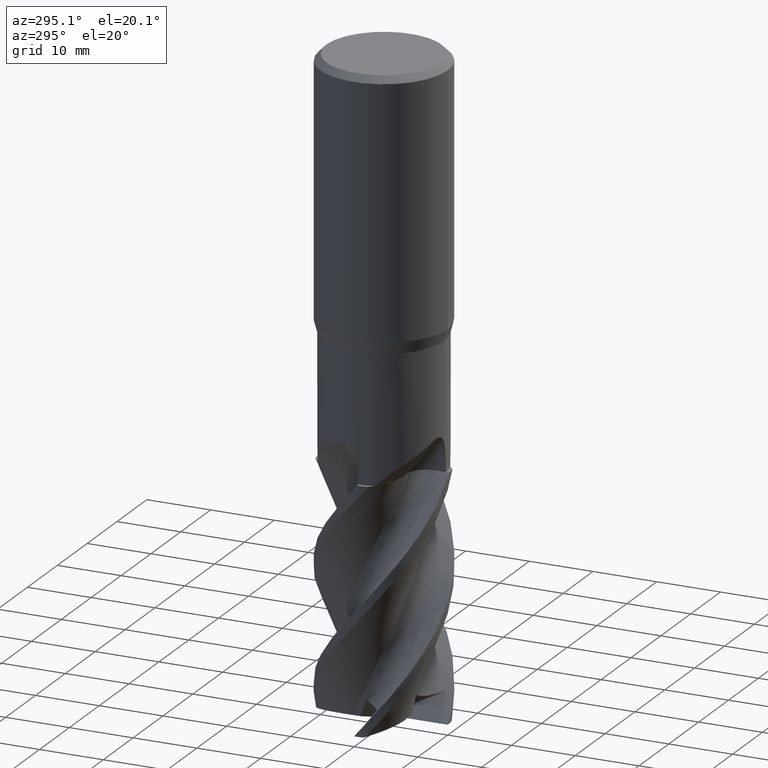
[diagram: clean part render]
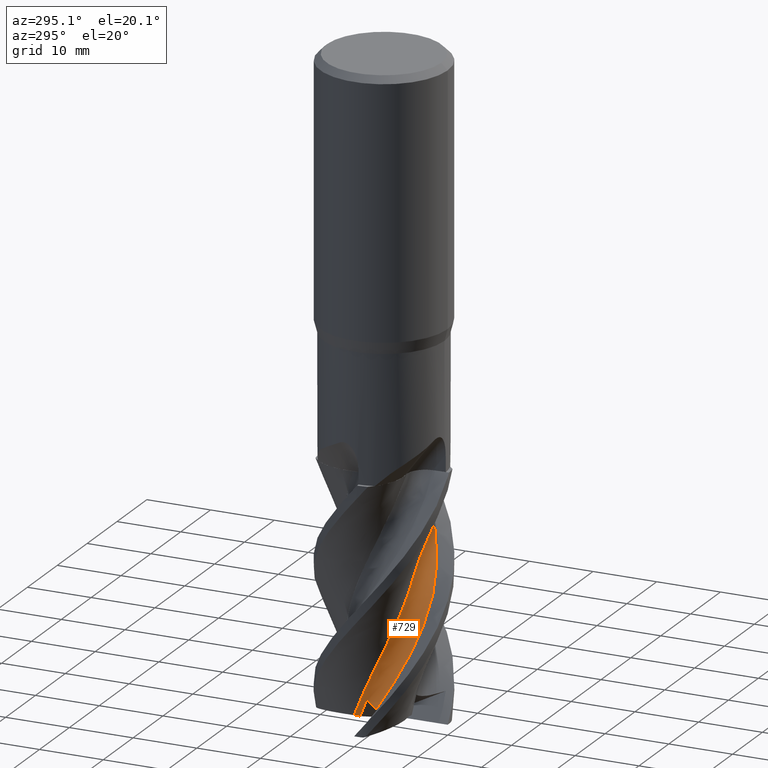
[diagram: same view with one face highlighted and labeled with its STEP entity id]
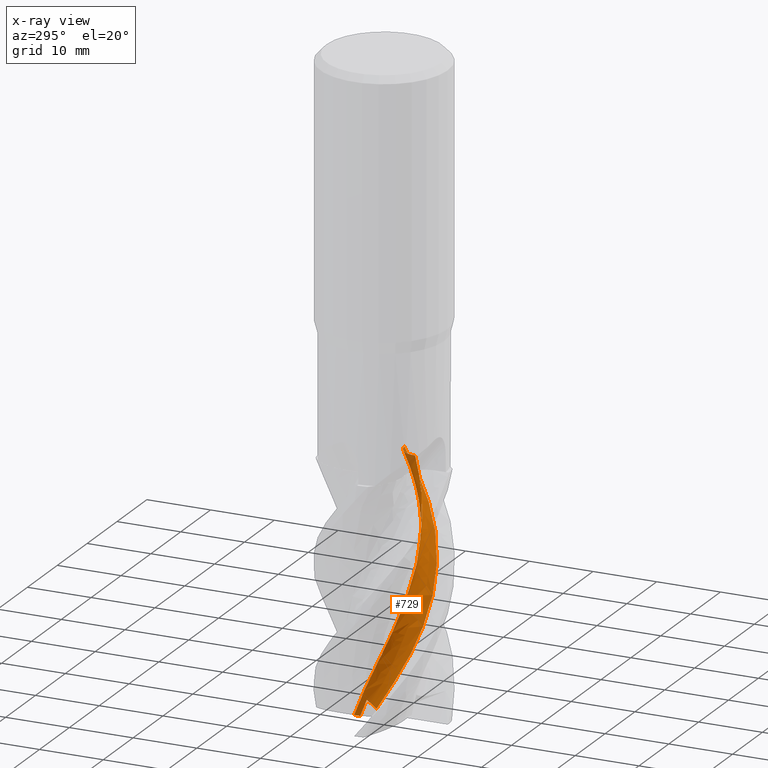
[diagram: x-ray of the same camera — body ghosted, the highlighted face saturated]
A machine part, auxiliary view. The second image highlights one B-rep face of the part: STEP entity #729.
The next image is the same camera in x-ray: the body ghosted, the highlighted face saturated — about 2% of this face is hidden behind the body in this view.
In plain terms, the highlighted face is a freeform B-spline surface patch.
Its self-contained STEP definition (entity closure, byte-faithful):
#511=EDGE_CURVE('',#559,#1005,#1466,.T.);
#559=VERTEX_POINT('',#1519);
#613=EDGE_CURVE('',#1147,#1117,#1577,.T.);
#657=VERTEX_POINT('',#1626);
#729=ADVANCED_FACE('',(#1701),#1702,.T.);
#783=EDGE_CURVE('',#657,#1117,#1761,.T.);
#963=EDGE_CURVE('',#1005,#1147,#1953,.T.);
#1005=VERTEX_POINT('',#1999);
#1065=EDGE_CURVE('',#657,#1111,#2067,.T.);
#1111=VERTEX_POINT('',#2117);
#1117=VERTEX_POINT('',#2123);
#1147=VERTEX_POINT('',#2158);
#1323=EDGE_CURVE('',#1111,#559,#2351,.T.);
#1466=B_SPLINE_CURVE_WITH_KNOTS('',3,(#2527,#2528,#2529,#2530,#2531,#2532),.UNSPECIFIED.,.F.,.F.,(4,2,4),(0.0,1.04268685341575,2.03928513413409),.UNSPECIFIED.);
#1519=CARTESIAN_POINT('',(-5.00926803873214,1.40514740391976,-98.8147217949249));
#1577=B_SPLINE_CURVE_WITH_KNOTS('',3,(#3366,#3367,#3368,#3369,#3370,#3371,#3372,#3373,#3374,#3375),.UNSPECIFIED.,.F.,.F.,(4,2,2,2,4),(0.0,1.12331201311393,2.24660096088112,3.36979158464827,4.49322327777783),.UNSPECIFIED.);
#1626=CARTESIAN_POINT('',(-7.20321874456389,-2.18351594832898,-96.4458820659791));
#1701=FACE_OUTER_BOUND('',#4061,.T.);
#1702=B_SPLINE_SURFACE_WITH_KNOTS('',3,3,((#4062,#4063,#4064,#4065,#4066,#4067,#4068,#4069,#4070,#4071,#4072,#4073,#4074,#4075,#4076,#4077,#4078,#4079,#4080,#4081,#4082,#4083,#4084,#4085,#4086,#4087,#4088,#4089,#4090,#4091,#4092,#4093,#4094,#4095,#4096,#4097,#4098,#4099,#4100,#4101,#4102,#4103,#4104,#4105,#4106,#4107,#4108,#4109,#4110,#4111,#4112,#4113,#4114),(#4115,#4116,#4117,#4118,#4119,#4120,#4121,#4122,#4123,#4124,#4125,#4126,#4127,#4128,#4129,#4130,#4131,#4132,#4133,#4134,#4135,#4136,#4137,#4138,#4139,#4140,#4141,#4142,#4143,#4144,#4145,#4146,#4147,#4148,#4149,#4150,#4151,#4152,#4153,#4154,#4155,#4156,#4157,#4158,#4159,#4160,#4161,#4162,#4163,#4164,#4165,#4166,#4167),(#4168,#4169,#4170,#4171,#4172,#4173,#4174,#4175,#4176,#4177,#4178,#4179,#4180,#4181,#4182,#4183,#4184,#4185,#4186,#4187,#4188,#4189,#4190,#4191,#4192,#4193,#4194,#4195,#4196,#4197,#4198,#4199,#4200,#4201,#4202,#4203,#4204,#4205,#4206,#4207,#4208,#4209,#4210,#4211,#4212,#4213,#4214,#4215,#4216,#4217,#4218,#4219,#4220),(#4221,#4222,#4223,#4224,#4225,#4226,#4227,#4228,#4229,#4230,#4231,#4232,#4233,#4234,#4235,#4236,#4237,#4238,#4239,#4240,#4241,#4242,#4243,#4244,#4245,#4246,#4247,#4248,#4249,#4250,#4251,#4252,#4253,#4254,#4255,#4256,#4257,#4258,#4259,#4260,#4261,#4262,#4263,#4264,#4265,#4266,#4267,#4268,#4269,#4270,#4271,#4272,#4273),(#4274,#4275,#4276,#4277,#4278,#4279,#4280,#4281,#4282,#4283,#4284,#4285,#4286,#4287,#4288,#4289,#4290,#4291,#4292,#4293,#4294,#4295,#4296,#4297,#4298,#4299,#4300,#4301,#4302,#4303,#4304,#4305,#4306,#4307,#4308,#4309,#4310,#4311,#4312,#4313,#4314,#4315,#4316,#4317,#4318,#4319,#4320,#4321,#4322,#4323,#4324,#4325,#4326),(#4327,#4328,#4329,#4330,#4331,#4332,#4333,#4334,#4335,#4336,#4337,#4338,#4339,#4340,#4341,#4342,#4343,#4344,#4345,#4346,#4347,#4348,#4349,#4350,#4351,#4352,#4353,#4354,#4355,#4356,#4357,#4358,#4359,#4360,#4361,#4362,#4363,#4364,#4365,#4366,#4367,#4368,#4369,#4370,#4371,#4372,#4373,#4374,#4375,#4376,#4377,#4378,#4379),(#4380,#4381,#4382,#4383,#4384,#4385,#4386,#4387,#4388,#4389,#4390,#4391,#4392,#4393,#4394,#4395,#4396,#4397,#4398,#4399,#4400,#4401,#4402,#4403,#4404,#4405,#4406,#4407,#4408,#4409,#4410,#4411,#4412,#4413,#4414,#4415,#4416,#4417,#4418,#4419,#4420,#4421,#4422,#4423,#4424,#4425,#4426,#4427,#4428,#4429,#4430,#4431,#4432)),.UNSPECIFIED.,.F.,.F.,.F.,(4,1,1,1,4),(4,1,2,1,2,1,2,1,2,1,2,1,2,1,2,1,2,1,2,1,2,1,2,1,2,1,2,1,2,1,2,1,2,1,4),(-4.63397436365283E-016,0.392699081681333,0.785398163362667,1.178097245044,1.57079632672533),(0.0,1.22301984073094,2.44603968146188,3.66905952219281,4.89207936292375,7.33811904438563,9.7841587258475,12.2301984073094,14.6762380887713,17.1222777702331,19.568317451695,22.0143571331569,24.4603968146188,26.9064364960806,29.3524761775425,31.7985158590044,34.2445555404663,36.6905952219281,39.13663490339,41.5826745848519,44.0287142663138,46.4747539477756,48.9207936292375,51.3668333106994,53.8128729921613,56.2589126736231,58.704952355085,61.1509920365469,63.5970317180088,66.0430713994706,68.4891110809325,70.9351507623944,73.3811904438563,75.8272301253181,78.27326980678),.UNSPECIFIED.);
#1761=B_SPLINE_CURVE_WITH_KNOTS('',3,(#5243,#5244,#5245,#5246,#5247,#5248,#5249,#5250,#5251,#5252,#5253,#5254,#5255,#5256,#5257,#5258,#5259,#5260,#5261,#5262,#5263,#5264,#5265,#5266,#5267,#5268,#5269,#5270,#5271,#5272,#5273,#5274,#5275,#5276,#5277,#5278,#5279,#5280,#5281,#5282,#5283,#5284,#5285,#5286,#5287,#5288,#5289,#5290,#5291,#5292,#5293,#5294,#5295),.UNSPECIFIED.,.F.,.F.,(4,1,2,1,2,1,2,1,2,1,2,1,2,1,2,1,2,1,2,1,2,1,2,1,2,1,2,1,2,1,2,1,2,1,4),(0.0,1.22301984073094,2.44603968146188,3.66905952219281,4.89207936292375,7.33811904438563,9.7841587258475,12.2301984073094,14.6762380887713,17.1222777702331,19.568317451695,22.0143571331569,24.4603968146188,26.9064364960806,29.3524761775425,31.7985158590044,34.2445555404663,36.6905952219281,39.13663490339,41.5826745848519,44.0287142663138,46.4747539477756,48.9207936292375,51.3668333106994,53.8128729921613,56.2589126736231,58.704952355085,61.1509920365469,63.5970317180088,66.0430713994706,68.4891110809325,70.9351507623944,73.3811904438563,75.8272301253181,78.27326980678),.UNSPECIFIED.);
#1953=B_SPLINE_CURVE_WITH_KNOTS('',3,(#6532,#6533,#6534,#6535,#6536,#6537,#6538,#6539,#6540,#6541,#6542,#6543,#6544,#6545,#6546,#6547,#6548,#6549,#6550,#6551,#6552,#6553,#6554,#6555,#6556,#6557,#6558,#6559,#6560,#6561,#6562,#6563,#6564,#6565,#6566,#6567,#6568,#6569,#6570,#6571,#6572,#6573,#6574,#6575,#6576,#6577,#6578,#6579,#6580,#6581),.UNSPECIFIED.,.F.,.F.,(4,2,2,2,2,2,2,2,2,2,2,2,2,2,2,2,2,2,2,2,2,2,2,2,4),(-42.6793750764278,-41.6484282628846,-41.3031767666782,-39.9343017732852,-37.2058171197827,-35.3592609180064,-34.1428005368885,-31.2942770569218,-30.9484209237267,-30.5525483034904,-26.5344471881157,-25.4755047854264,-23.7536246427578,-21.1447431770907,-20.2111288594085,-19.2419914901878,-16.6354994667726,-14.1723806855383,-11.5471699419231,-8.99212927884828,-6.42373230069979,-5.1359163561375,-4.1335898919326,-3.09989082133511,-0.0),.UNSPECIFIED.);
#1999=CARTESIAN_POINT('',(-4.91967659500781,2.38364188820486,-98.8438318196049));
#2067=B_SPLINE_CURVE_WITH_KNOTS('',3,(#8416,#8417,#8418,#8419,#8420,#8421,#8422,#8423,#8424,#8425,#8426,#8427),.UNSPECIFIED.,.F.,.F.,(4,2,2,2,2,4),(0.0,1.48304953667462,2.54994211312276,3.382607880985,4.09551695463538,4.84909789239624),.UNSPECIFIED.);
#2117=CARTESIAN_POINT('',(-5.1968307244328,0.257245450401672,-96.1044122415691));
#2123=CARTESIAN_POINT('',(7.51982989433022,0.325351321170703,-62.0));
#2158=CARTESIAN_POINT('',(4.79210471077056,-2.63124668642199,-62.0));
#2351=B_SPLINE_CURVE_WITH_KNOTS('',3,(#10015,#10016,#10017,#10018,#10019,#10020,#10021,#10022,#10023,#10024),.UNSPECIFIED.,.F.,.F.,(4,2,2,2,4),(0.0,2.78678133127191,4.95487934234066,8.66180025825916,11.9106485364586),.UNSPECIFIED.);
#2527=CARTESIAN_POINT('',(-5.40610677336301,0.476930002835768,-98.6857810738152));
#2528=CARTESIAN_POINT('',(-5.22903971020181,0.770420717146186,-98.7433136501904));
#2529=CARTESIAN_POINT('',(-5.08974327923389,1.09004090396465,-98.7885738042285));
#2530=CARTESIAN_POINT('',(-4.92227008976455,1.74524111986049,-98.842989142078));
#2531=CARTESIAN_POINT('',(-4.89004525345537,2.07768649677621,-98.8534596261011));
#2532=CARTESIAN_POINT('',(-4.92180436179873,2.40679017917124,-98.8431404662656));
#3366=CARTESIAN_POINT('',(4.79291087853714,-2.65514743398472,-62.0));
#3367=CARTESIAN_POINT('',(4.77873234851798,-2.28097863630934,-62.0));
#3368=CARTESIAN_POINT('',(4.83777279409011,-1.90761566930437,-62.0));
#3369=CARTESIAN_POINT('',(5.09564284664005,-1.20454766134575,-62.0));
#3370=CARTESIAN_POINT('',(5.29200536840838,-0.88156030856784,-62.0));
#3371=CARTESIAN_POINT('',(5.7974671370231,-0.329067740189729,-62.0));
#3372=CARTESIAN_POINT('',(6.10172467397946,-0.104835932317854,-62.0));
#3373=CARTESIAN_POINT('',(6.77914391231097,0.214401178119614,-62.0));
#3374=CARTESIAN_POINT('',(7.14583785785515,0.306323648339433,-62.0));
#3375=CARTESIAN_POINT('',(7.51982989433022,0.325351321170703,-62.0));
#4061=EDGE_LOOP('',(#10976,#10977,#10978,#10979,#10980,#10981));
#4062=CARTESIAN_POINT('',(3.08721113193414,4.51190119880654,-120.0));
#4063=CARTESIAN_POINT('',(3.11610382286491,4.51524322899714,-119.593768411031));
#4064=CARTESIAN_POINT('',(3.06013871840662,4.58917170861519,-118.78060100899));
#4065=CARTESIAN_POINT('',(2.75699189989394,4.78076581627041,-117.967197499112));
#4066=CARTESIAN_POINT('',(2.31605559725722,4.9961917282453,-117.155338148176));
#4067=CARTESIAN_POINT('',(1.89714969170703,5.16883258850242,-116.343747876049));
#4068=CARTESIAN_POINT('',(1.52872133401086,5.27994279550028,-115.531622990232));
#4069=CARTESIAN_POINT('',(1.01082684962153,5.41503697790628,-114.312424192179));
#4070=CARTESIAN_POINT('',(0.302521388352476,5.52823535868766,-112.686807230555));
#4071=CARTESIAN_POINT('',(-0.446022687883692,5.49588480233488,-111.061476902276));
#4072=CARTESIAN_POINT('',(-1.20967755949133,5.37718956688334,-109.436843998997));
#4073=CARTESIAN_POINT('',(-1.93792388798994,5.18525835775153,-107.812284087169));
#4074=CARTESIAN_POINT('',(-2.60798490320984,4.85589478790535,-106.187215946125));
#4075=CARTESIAN_POINT('',(-3.25084516038128,4.45006683834334,-104.562078291245));
#4076=CARTESIAN_POINT('',(-3.83837816597191,3.98905611551164,-102.937092088323));
#4077=CARTESIAN_POINT('',(-4.32325333384168,3.41961334817729,-101.311965084728));
#4078=CARTESIAN_POINT('',(-4.75260311258176,2.7900459813916,-99.6870055977501));
#4079=CARTESIAN_POINT('',(-5.10836857642133,2.13291553327871,-98.0621508571898));
#4080=CARTESIAN_POINT('',(-5.32667714479379,1.41806321474878,-96.4370327670634));
#4081=CARTESIAN_POINT('',(-5.47022389499008,0.669664459637299,-94.812021589412));
#4082=CARTESIAN_POINT('',(-5.53528513095286,-0.0749797990304065,-93.1871324521088));
#4083=CARTESIAN_POINT('',(-5.45117572326192,-0.817812643737092,-91.5620140537044));
#4084=CARTESIAN_POINT('',(-5.28522627424691,-1.56142828315366,-89.9370154945107));
#4085=CARTESIAN_POINT('',(-5.04879543739392,-2.27038069927681,-88.3121338328947));
#4086=CARTESIAN_POINT('',(-4.67620377986173,-2.91845536995069,-86.6870149801742));
#4087=CARTESIAN_POINT('',(-4.22813837476447,-3.53476678594239,-85.0620139811539));
#4088=CARTESIAN_POINT('',(-3.72918981299303,-4.09122429010573,-83.4371311546494));
#4089=CARTESIAN_POINT('',(-3.12955821834894,-4.53763024613877,-81.8120125834688));
#4090=CARTESIAN_POINT('',(-2.47334225150787,-4.92486463395386,-80.1870119231299));
#4091=CARTESIAN_POINT('',(-1.79424518160549,-5.23695086383405,-78.5621291786726));
#4092=CARTESIAN_POINT('',(-1.06653151763088,-5.40802566058477,-76.9370105313418));
#4093=CARTESIAN_POINT('',(-0.310430194038539,-5.50230381356891,-75.3120098946399));
#4094=CARTESIAN_POINT('',(0.436774962016067,-5.51853203030275,-73.6871272016574));
#4095=CARTESIAN_POINT('',(1.17249884247416,-5.38604359729932,-72.0620086700829));
#4096=CARTESIAN_POINT('',(1.9037220352411,-5.17180243448855,-70.4370081889914));
#4097=CARTESIAN_POINT('',(2.59573028525208,-4.88949172907576,-68.8121254918461));
#4098=CARTESIAN_POINT('',(3.21804584125014,-4.47530946613914,-67.187006322503));
#4099=CARTESIAN_POINT('',(3.80371712525012,-3.98791128071872,-65.5620047974434));
#4100=CARTESIAN_POINT('',(4.32635387599371,-3.45363913235864,-63.9371221468102));
#4101=CARTESIAN_POINT('',(4.73259594212301,-2.82607794431654,-62.3120059091278));
#4102=CARTESIAN_POINT('',(5.07608650998662,-2.14593062269123,-60.6870087802051));
#4103=CARTESIAN_POINT('',(5.34308278835049,-1.44790096699008,-59.0621251400353));
#4104=CARTESIAN_POINT('',(5.46620504481946,-0.710519042036873,-57.4369970062386));
#4105=CARTESIAN_POINT('',(5.5108114848989,0.0502646993474017,-55.8119838471334));
#4106=CARTESIAN_POINT('',(5.47807490782117,0.797020048069303,-54.1871059758979));
#4107=CARTESIAN_POINT('',(5.29786995778533,1.52205615741117,-52.5620173136074));
#4108=CARTESIAN_POINT('',(5.03673322896618,2.23690988545075,-50.9370507379584));
#4109=CARTESIAN_POINT('',(4.71011061627908,2.90897421936311,-49.3121453408592));
#4110=CARTESIAN_POINT('',(4.25438587443237,3.50491982800874,-47.6869503066768));
#4111=CARTESIAN_POINT('',(3.72611066974083,4.06004007450653,-46.0618862290408));
#4112=CARTESIAN_POINT('',(3.15811152350845,4.54539028834498,-44.437087585809));
#4113=CARTESIAN_POINT('',(2.51614121609505,4.90452672686972,-42.8120826714825));
#4114=CARTESIAN_POINT('',(2.17419623596112,5.05180807732969,-41.9995734139953));
#4115=CARTESIAN_POINT('',(2.71127897221626,4.52934432591632,-120.0));
#4116=CARTESIAN_POINT('',(2.74015505370853,4.53232836280882,-119.593767296312));
#4117=CARTESIAN_POINT('',(2.68366624048972,4.59771450453499,-118.780678726627));
#4118=CARTESIAN_POINT('',(2.38064767069302,4.76466743936391,-117.967380480443));
#4119=CARTESIAN_POINT('',(1.94250617083635,4.94766482533131,-117.155445066758));
#4120=CARTESIAN_POINT('',(1.52828401234983,5.09033922774199,-116.343747537785));
#4121=CARTESIAN_POINT('',(1.1667846246332,5.17610511105641,-115.531578732684));
#4122=CARTESIAN_POINT('',(0.660213958936957,5.27609667054204,-114.312433028779));
#4123=CARTESIAN_POINT('',(-0.0284524944787125,5.34395359608019,-112.686888671081));
#4124=CARTESIAN_POINT('',(-0.747769790907061,5.26945195452043,-111.061596945888));
#4125=CARTESIAN_POINT('',(-1.47693997290957,5.11093068847094,-109.436920626933));
#4126=CARTESIAN_POINT('',(-2.16749723577127,4.88381846758501,-107.812308796316));
#4127=CARTESIAN_POINT('',(-2.79395218233255,4.52768749684163,-106.187248647254));
#4128=CARTESIAN_POINT('',(-3.38996374188623,4.09942496932643,-104.56212714528));
#4129=CARTESIAN_POINT('',(-3.92928858479677,3.62122771992231,-102.937139256586));
#4130=CARTESIAN_POINT('',(-4.36344684794768,3.04452534334458,-101.312027041979));
#4131=CARTESIAN_POINT('',(-4.74078735217579,2.41299590417127,-99.687062777381));
#4132=CARTESIAN_POINT('',(-5.04546004706388,1.75927980513952,-98.0621907776626));
#4133=CARTESIAN_POINT('',(-5.21437328892092,1.05793210690873,-96.4370865457849));
#4134=CARTESIAN_POINT('',(-5.30941955400915,0.328419130351794,-94.8120765814974));
#4135=CARTESIAN_POINT('',(-5.32894887175681,-0.392765328828374,-93.1871743270863));
#4136=CARTESIAN_POINT('',(-5.20488670233559,-1.10355393115661,-91.562069756259));
#4137=CARTESIAN_POINT('',(-5.00195674472646,-1.81055589075862,-89.9370709695596));
#4138=CARTESIAN_POINT('',(-4.73308723157939,-2.4798804641705,-88.31217529739));
#4139=CARTESIAN_POINT('',(-4.33658434704948,-3.0826659126099,-86.6870702706053));
#4140=CARTESIAN_POINT('',(-3.86915056258192,-3.65067213100175,-85.0620694232556));
#4141=CARTESIAN_POINT('',(-3.35620068101032,-4.1578657280283,-83.43717262725));
#4142=CARTESIAN_POINT('',(-2.75264474890478,-4.55320795414356,-81.8120679549066));
#4143=CARTESIAN_POINT('',(-2.09787179678228,-4.88842011111799,-80.1870672945677));
#4144=CARTESIAN_POINT('',(-1.42552304953442,-5.14973893512046,-78.5621706549631));
#4145=CARTESIAN_POINT('',(-0.714519157868813,-5.27240213750829,-76.9370658859262));
#4146=CARTESIAN_POINT('',(0.0195664119033295,-5.31952387557967,-75.3120652492243));
#4147=CARTESIAN_POINT('',(0.740387232163096,-5.29185704569674,-73.6871686588437));
#4148=CARTESIAN_POINT('',(1.44152412750207,-5.12159728235738,-72.0620639775671));
#4149=CARTESIAN_POINT('',(2.13379125750352,-4.87284688030507,-70.4370634964756));
#4150=CARTESIAN_POINT('',(2.78413291764192,-4.56075722651411,-68.8121668911592));
#4151=CARTESIAN_POINT('',(3.35969229723183,-4.1256772185871,-67.1870616349403));
#4152=CARTESIAN_POINT('',(3.89589637195146,-3.62211181659908,-65.5620602615512));
#4153=CARTESIAN_POINT('',(4.36845898641736,-3.07709005353531,-63.9371636709967));
#4154=CARTESIAN_POINT('',(4.72348879606364,-2.4489526352061,-62.3120610576898));
#4155=CARTESIAN_POINT('',(5.01516216711449,-1.77364777594597,-60.6870634737557));
#4156=CARTESIAN_POINT('',(5.23194243585864,-1.08567219030151,-59.0621660705605));
#4157=CARTESIAN_POINT('',(5.30784750065215,-0.368131073103945,-57.4370528275824));
#4158=CARTESIAN_POINT('',(5.30683194237082,0.367595479836302,-55.8120413368525));
#4159=CARTESIAN_POINT('',(5.23201741989392,1.08514697794994,-54.187148984785));
#4160=CARTESIAN_POINT('',(5.01640447576203,1.77321796469544,-52.5620706908776));
#4161=CARTESIAN_POINT('',(4.72340849788002,2.44698727582524,-50.9370998684551));
#4162=CARTESIAN_POINT('',(4.36978467762515,3.07554295969913,-49.3121827581651));
#4163=CARTESIAN_POINT('',(3.8962034310134,3.62331956293507,-47.6870109023809));
#4164=CARTESIAN_POINT('',(3.35499548802484,4.1277638549251,-46.0619544082691));
#4165=CARTESIAN_POINT('',(2.77963500722246,4.56244713146086,-44.4371333955843));
#4166=CARTESIAN_POINT('',(2.14042067898384,4.87115363224796,-42.8121307750391));
#4167=CARTESIAN_POINT('',(1.80244487066501,4.99324041328533,-41.9996236409386));
#4168=CARTESIAN_POINT('',(1.96650945388016,4.71371697069067,-120.0));
#4169=CARTESIAN_POINT('',(1.99520995775684,4.71599177181313,-119.593765092206));
#4170=CARTESIAN_POINT('',(1.93427700517085,4.76450510479467,-118.780832369925));
#4171=CARTESIAN_POINT('',(1.62171600567319,4.88213507705846,-117.967742225636));
#4172=CARTESIAN_POINT('',(1.17626738884543,4.99917768779753,-117.155656438101));
#4173=CARTESIAN_POINT('',(0.759494224203957,5.08006922814382,-116.343746865174));
#4174=CARTESIAN_POINT('',(0.401771410103514,5.11240177176297,-115.531491246598));
#4175=CARTESIAN_POINT('',(-0.0961153625941524,5.13769980292694,-114.31245048085));
#4176=CARTESIAN_POINT('',(-0.763542598808307,5.10708324389095,-112.687049679157));
#4177=CARTESIAN_POINT('',(-1.44118054749512,4.9366748703023,-111.06183427399));
#4178=CARTESIAN_POINT('',(-2.1172331108743,4.68480501157966,-109.437072107903));
#4179=CARTESIAN_POINT('',(-2.74641827389567,4.37235816017741,-107.812357652381));
#4180=CARTESIAN_POINT('',(-3.29632381497228,3.94536315017934,-106.187313289137));
#4181=CARTESIAN_POINT('',(-3.8075790660861,3.45361104869715,-104.562223733573));
#4182=CARTESIAN_POINT('',(-4.25734230371342,2.9218774226255,-102.937232425479));
#4183=CARTESIAN_POINT('',(-4.59297502829854,2.31049071593158,-101.312149682115));
#4184=CARTESIAN_POINT('',(-4.86709907029204,1.65435590477372,-99.6871756644836));
#4185=CARTESIAN_POINT('',(-5.06825002702179,0.987149426049347,-98.06226979345));
#4186=CARTESIAN_POINT('',(-5.13302316659772,0.293162640070798,-96.4371928270697));
#4187=CARTESIAN_POINT('',(-5.12357870699383,-0.417873469702662,-94.8121853342438));
#4188=CARTESIAN_POINT('',(-5.04273433580806,-1.11025454395989,-93.1872570711436));
#4189=CARTESIAN_POINT('',(-4.8260406964872,-1.77285578137096,-91.5621799218547));
#4190=CARTESIAN_POINT('',(-4.53460545442057,-2.42135158292166,-89.937180596109));
#4191=CARTESIAN_POINT('',(-4.18511378371833,-3.02433673107121,-88.3122571861906));
#4192=CARTESIAN_POINT('',(-3.72278872730281,-3.54607139969002,-86.6871797900377));
#4193=CARTESIAN_POINT('',(-3.19741724172714,-4.02518962683365,-85.062178816103));
#4194=CARTESIAN_POINT('',(-2.63688025275049,-4.43944395408805,-83.4372547166399));
#4195=CARTESIAN_POINT('',(-2.00517120845339,-4.73424075790166,-81.8121774339198));
#4196=CARTESIAN_POINT('',(-1.33259646175622,-4.96485657182946,-80.1871767482638));
#4197=CARTESIAN_POINT('',(-0.653553261214558,-5.12197834921009,-78.5622526495342));
#4198=CARTESIAN_POINT('',(0.0432895485413143,-5.14119405235924,-76.9371753353269));
#4199=CARTESIAN_POINT('',(0.752105168921776,-5.08526784390849,-75.3121746658924));
#4200=CARTESIAN_POINT('',(1.43762381377432,-4.95933747529776,-73.6872505830202));
#4201=CARTESIAN_POINT('',(2.08462147588276,-4.6997970703828,-72.0621734027514));
#4202=CARTESIAN_POINT('',(2.7127159282532,-4.36655131744296,-70.4371727511607));
#4203=CARTESIAN_POINT('',(3.2915838564978,-3.97834717065632,-68.8122487418995));
#4204=CARTESIAN_POINT('',(3.78196084241997,-3.48288733145813,-67.1871710568239));
#4205=CARTESIAN_POINT('',(4.22568037918327,-2.92732309266253,-65.5621698389295));
#4206=CARTESIAN_POINT('',(4.60239055511847,-2.3408941055668,-63.9372458112582));
#4207=CARTESIAN_POINT('',(4.855246527561,-1.69123924828501,-62.3121700571528));
#4208=CARTESIAN_POINT('',(5.04138171137786,-1.00501167355077,-60.6871716262244));
#4209=CARTESIAN_POINT('',(5.15375298521497,-0.317170949548762,-59.0622468310175));
#4210=CARTESIAN_POINT('',(5.12735357444128,0.379473358922768,-57.4371634710358));
#4211=CARTESIAN_POINT('',(5.02514904489005,1.08323817792723,-55.812154703318));
#4212=CARTESIAN_POINT('',(4.85458303673338,1.75912707867951,-54.1872341777349));
#4213=CARTESIAN_POINT('',(4.55346944949782,2.38736375315557,-52.5621761691424));
#4214=CARTESIAN_POINT('',(4.18043068328222,2.99165076669003,-50.9371970425849));
#4215=CARTESIAN_POINT('',(3.75551411361825,3.54394478249706,-49.3122570516887));
#4216=CARTESIAN_POINT('',(3.22707243741104,4.0025045371795,-47.6871300079911));
#4217=CARTESIAN_POINT('',(2.63985256163473,4.41076109121629,-46.0620898836906));
#4218=CARTESIAN_POINT('',(2.02962425440365,4.74705916077375,-44.4372235998133));
#4219=CARTESIAN_POINT('',(1.37586664208524,4.95383110475447,-42.8122259028435));
#4220=CARTESIAN_POINT('',(1.03580861647093,5.02396095165926,-41.9997229369162));
#4221=CARTESIAN_POINT('',(1.04014691255925,5.39678006242423,-120.0));
#4222=CARTESIAN_POINT('',(1.06819694764866,5.39817270285624,-119.593762365099));
#4223=CARTESIAN_POINT('',(0.99141886430707,5.42585257725951,-118.781022492732));
#4224=CARTESIAN_POINT('',(0.63731885612615,5.48060205812712,-117.968189852331));
#4225=CARTESIAN_POINT('',(0.14388171877195,5.51043028236374,-117.155917996656));
#4226=CARTESIAN_POINT('',(-0.311893371768254,5.50715923600594,-116.34374603401));
#4227=CARTESIAN_POINT('',(-0.695055516107873,5.46326873854387,-115.53138298373));
#4228=CARTESIAN_POINT('',(-1.22378476417905,5.38006147451193,-114.312472088229));
#4229=CARTESIAN_POINT('',(-1.9183045388431,5.20077477855372,-112.687248918279));
#4230=CARTESIAN_POINT('',(-2.59323288315419,4.87351992542267,-111.062127927064));
#4231=CARTESIAN_POINT('',(-3.24925465136418,4.46178295209929,-109.437259574533));
#4232=CARTESIAN_POINT('',(-3.842368423041,3.99583721624587,-107.812418086386));
#4233=CARTESIAN_POINT('',(-4.32686099838518,3.42668618442441,-106.187393299862));
#4234=CARTESIAN_POINT('',(-4.75709575792637,2.79828733630373,-104.562343232121));
#4235=CARTESIAN_POINT('',(-5.11346504681285,2.14094302024582,-102.937347774356));
#4236=CARTESIAN_POINT('',(-5.33245833978634,1.42492755592834,-101.312301341112));
#4237=CARTESIAN_POINT('',(-5.47765591367728,0.675439921343913,-99.687315451326));
#4238=CARTESIAN_POINT('',(-5.54307666143792,-0.0698899549640896,-98.0623675175485));
#4239=CARTESIAN_POINT('',(-5.45929290525033,-0.813456582260692,-96.4373243464063));
#4240=CARTESIAN_POINT('',(-5.2944245889261,-1.55886786407015,-94.8123199020892));
#4241=CARTESIAN_POINT('',(-5.05793426298182,-2.26894879744848,-93.1873594747322));
#4242=CARTESIAN_POINT('',(-4.6851975585094,-2.91794061901116,-91.562316218687));
#4243=CARTESIAN_POINT('',(-4.23751437773188,-3.53615712551153,-89.9373162742366));
#4244=CARTESIAN_POINT('',(-3.73820355396586,-4.09348133930051,-88.3123585835957));
#4245=CARTESIAN_POINT('',(-3.13812613025241,-4.54067015558111,-86.6873151539657));
#4246=CARTESIAN_POINT('',(-2.48143065911342,-4.92985457539898,-85.0623143383641));
#4247=CARTESIAN_POINT('',(-1.80158931064072,-5.24261854880117,-83.4373562195207));
#4248=CARTESIAN_POINT('',(-1.07314384528652,-5.4142273119319,-81.8123129000058));
#4249=CARTESIAN_POINT('',(-0.315853458382787,-5.51009855407657,-80.1873121936675));
#4250=CARTESIAN_POINT('',(0.432282071048325,-5.52665307045854,-78.5623541308695));
#4251=CARTESIAN_POINT('',(1.16888259642954,-5.39436808179431,-76.9373107253257));
#4252=CARTESIAN_POINT('',(1.90183033093148,-5.181118099254,-75.312310104903));
#4253=CARTESIAN_POINT('',(2.59483065879029,-4.8987356481145,-73.6873520065913));
#4254=CARTESIAN_POINT('',(3.21804644036778,-4.48437951457015,-72.0623086647308));
#4255=CARTESIAN_POINT('',(3.80570628352276,-3.99719051204862,-70.4373080877586));
#4256=CARTESIAN_POINT('',(4.32920983528857,-3.46246715675284,-68.8123499498447));
#4257=CARTESIAN_POINT('',(4.7361906490739,-2.83442593307603,-67.1873064662065));
#4258=CARTESIAN_POINT('',(5.08158260207858,-2.15370399291291,-65.5623054233884));
#4259=CARTESIAN_POINT('',(5.3492174040874,-1.45486323444164,-63.9373474384235));
#4260=CARTESIAN_POINT('',(5.47281924301116,-0.716733823151005,-62.3123049733911));
#4261=CARTESIAN_POINT('',(5.51895560277328,0.0452161722197412,-60.6873054179087));
#4262=CARTESIAN_POINT('',(5.48654544502932,0.792805882073539,-59.0623468778797));
#4263=CARTESIAN_POINT('',(5.30636299959612,1.51921643631206,-57.4373001969335));
#4264=CARTESIAN_POINT('',(5.04556951052478,2.23677193136874,-55.8122951715114));
#4265=CARTESIAN_POINT('',(4.71838188343414,2.90988527916454,-54.1873394708488));
#4266=CARTESIAN_POINT('',(4.26442214568734,3.50427719839856,-52.5623067560532));
#4267=CARTESIAN_POINT('',(3.74056303095947,4.05821480126146,-50.9373172215612));
#4268=CARTESIAN_POINT('',(3.173061421742,4.5457407798209,-49.3123488226141));
#4269=CARTESIAN_POINT('',(2.51737186894209,4.91214443916154,-47.6872777802677));
#4270=CARTESIAN_POINT('',(1.81116595850844,5.2135042632087,-46.0622571348389));
#4271=CARTESIAN_POINT('',(1.09613511335011,5.43346276000876,-44.4373354443342));
#4272=CARTESIAN_POINT('',(0.363705982706812,5.50730865574206,-42.8123435563235));
#4273=CARTESIAN_POINT('',(-0.00906373199139415,5.50662491921201,-41.9998458076302));
#4274=CARTESIAN_POINT('',(0.44567765274784,6.38235254042635,-120.0));
#4275=CARTESIAN_POINT('',(0.472789138079434,6.38317906776506,-119.593760632028));
#4276=CARTESIAN_POINT('',(0.373399430638992,6.39767459476224,-118.781143312026));
#4277=CARTESIAN_POINT('',(-0.0431409786339913,6.41022515367599,-117.968474310902));
#4278=CARTESIAN_POINT('',(-0.614289059921368,6.37784057435642,-117.156084211827));
#4279=CARTESIAN_POINT('',(-1.13830461312422,6.31173729473607,-116.343745504554));
#4280=CARTESIAN_POINT('',(-1.57413858359665,6.20715985944066,-115.531314187588));
#4281=CARTESIAN_POINT('',(-2.17288518406021,6.03550789011839,-114.312485813605));
#4282=CARTESIAN_POINT('',(-2.94932780986428,5.72923353816014,-112.687375530811));
#4283=CARTESIAN_POINT('',(-3.68177391999129,5.25603237626468,-111.062314543992));
#4284=CARTESIAN_POINT('',(-4.38046639679866,4.68893002354779,-109.43737870003));
#4285=CARTESIAN_POINT('',(-4.99899414289224,4.0673641106774,-107.812456491229));
#4286=CARTESIAN_POINT('',(-5.47745158776997,3.34184424263767,-106.187444150767));
#4287=CARTESIAN_POINT('',(-5.88512328388211,2.55619394902447,-104.562419165565));
#4288=CARTESIAN_POINT('',(-6.20327452883521,1.74705930386982,-102.93742107765));
#4289=CARTESIAN_POINT('',(-6.3545442025981,0.889743132103543,-101.312397720576));
#4290=CARTESIAN_POINT('',(-6.41635122190278,0.0046706122163781,-99.6874042801531));
#4291=CARTESIAN_POINT('',(-6.38626756922435,-0.864777402787248,-98.0624296010031));
#4292=CARTESIAN_POINT('',(-6.18420610052533,-1.71099941526557,-96.4374079641972));
#4293=CARTESIAN_POINT('',(-5.88889718148131,-2.5476464128292,-94.8124053776455));
#4294=CARTESIAN_POINT('',(-5.51537994544363,-3.33364183206034,-93.1874245641522));
#4295=CARTESIAN_POINT('',(-4.99326817317124,-4.02977368999457,-91.5624028447209));
#4296=CARTESIAN_POINT('',(-4.38964143457897,-4.67980744269308,-89.9374024831178));
#4297=CARTESIAN_POINT('',(-3.73444049577977,-5.25227778352458,-88.3124229946371));
#4298=CARTESIAN_POINT('',(-2.97856780441369,-5.68330848079193,-86.6874012373237));
#4299=CARTESIAN_POINT('',(-2.16612764815143,-6.03965801906587,-85.0624003980273));
#4300=CARTESIAN_POINT('',(-1.33722406375684,-6.30431044956035,-83.4374207536987));
#4301=CARTESIAN_POINT('',(-0.472263581448557,-6.39912518441437,-81.812398986217));
#4302=CARTESIAN_POINT('',(0.414858296851632,-6.40292534355173,-80.1873982665539));
#4303=CARTESIAN_POINT('',(1.28061924816556,-6.31605059796819,-78.5624185893367));
#4304=CARTESIAN_POINT('',(2.11192704965581,-6.05900941111515,-76.9373968251698));
#4305=CARTESIAN_POINT('',(2.92737409885388,-5.7096438273652,-75.3123961117635));
#4306=CARTESIAN_POINT('',(3.68715686860794,-5.28557940092233,-73.6874164661432));
#4307=CARTESIAN_POINT('',(4.34764474205867,-4.71908939687272,-72.0623946695953));
#4308=CARTESIAN_POINT('',(4.95685747992642,-4.07419995604593,-70.4373940431475));
#4309=CARTESIAN_POINT('',(5.48527940790965,-3.38292202047213,-68.8124142828941));
#4310=CARTESIAN_POINT('',(5.86594652240784,-2.60047616077667,-67.187392530069));
#4311=CARTESIAN_POINT('',(6.16838900645927,-1.76649446168816,-65.5623915709655));
#4312=CARTESIAN_POINT('',(6.3782668675083,-0.922056876944737,-63.9374120653849));
#4313=CARTESIAN_POINT('',(6.4163086649395,-0.0527241875563917,-62.3123906342132));
#4314=CARTESIAN_POINT('',(6.36207809685794,0.832759178943084,-60.687390515845));
#4315=CARTESIAN_POINT('',(6.21876978236702,1.69095471258741,-59.0624104607984));
#4316=CARTESIAN_POINT('',(5.90789900598838,2.50371492257723,-57.437386997679));
#4317=CARTESIAN_POINT('',(5.50586363243716,3.29469945076631,-55.8123845223313));
#4318=CARTESIAN_POINT('',(5.03291221474523,4.02518356726952,-54.1874063431428));
#4319=CARTESIAN_POINT('',(4.42478745226436,4.64679683584927,-52.5623897345528));
#4320=CARTESIAN_POINT('',(3.74231903088286,5.21193206308849,-50.9373936000033));
#4321=CARTESIAN_POINT('',(3.0182990123317,5.69418290905388,-49.3124071927275));
#4322=CARTESIAN_POINT('',(2.20978025019843,6.0241387166109,-47.68737157687));
#4323=CARTESIAN_POINT('',(1.3527373175713,6.27227025872995,-46.062363529623));
#4324=CARTESIAN_POINT('',(0.496359962510775,6.42484868548456,-44.4374064609299));
#4325=CARTESIAN_POINT('',(-0.359620633433124,6.40599068834641,-42.8124183299561));
#4326=CARTESIAN_POINT('',(-0.789710995455858,6.35240068985248,-41.9999238896341));
#4327=CARTESIAN_POINT('',(0.331000865996318,7.14099618802394,-120.0));
#4328=CARTESIAN_POINT('',(0.357389906684575,7.1417135266655,-119.593760315349));
#4329=CARTESIAN_POINT('',(0.240710825589769,7.15385784812564,-118.78116538442));
#4330=CARTESIAN_POINT('',(-0.225050451809192,7.15634917031627,-117.968526283915));
#4331=CARTESIAN_POINT('',(-0.859929915396679,7.10547519044494,-117.156114576738));
#4332=CARTESIAN_POINT('',(-1.44200231426015,7.01808495221481,-116.343745409227));
#4333=CARTESIAN_POINT('',(-1.9257576182803,6.88956987702792,-115.531301618287));
#4334=CARTESIAN_POINT('',(-2.59018961932431,6.68131040528413,-114.312488321772));
#4335=CARTESIAN_POINT('',(-3.44948294566819,6.31772831572296,-112.687398647034));
#4336=CARTESIAN_POINT('',(-4.25458613381674,5.76931732906967,-111.062348669969));
#4337=CARTESIAN_POINT('',(-5.01919480053825,5.1174163416693,-109.437400433086));
#4338=CARTESIAN_POINT('',(-5.69307588773246,4.40649246799161,-107.812463540363));
#4339=CARTESIAN_POINT('',(-6.20770911959436,3.58313022896043,-106.187453407157));
#4340=CARTESIAN_POINT('',(-6.64160278474653,2.69487742587665,-104.562433072623));
#4341=CARTESIAN_POINT('',(-6.97494128741447,1.78250971274286,-102.93743446874));
#4342=CARTESIAN_POINT('',(-7.12055065178297,0.820893277537261,-101.312415297804));
#4343=CARTESIAN_POINT('',(-7.16559024425777,-0.168956248982031,-99.6874205404041));
#4344=CARTESIAN_POINT('',(-7.10835336848883,-1.13920971782532,-98.0624409343797));
#4345=CARTESIAN_POINT('',(-6.85963765172958,-2.0788288767759,-96.4374232283693));
#4346=CARTESIAN_POINT('',(-6.50727043856436,-3.00494295075581,-94.8124210067707));
#4347=CARTESIAN_POINT('',(-6.06872982353967,-3.87264990597435,-93.1874364582618));
#4348=CARTESIAN_POINT('',(-5.4666489218706,-4.63592224480566,-91.5624186538826));
#4349=CARTESIAN_POINT('',(-4.77509863606709,-5.34533540813792,-89.937418250828));
#4350=CARTESIAN_POINT('',(-4.02775389617174,-5.96690429812871,-88.3124348107069));
#4351=CARTESIAN_POINT('',(-3.17180952928188,-6.42773003932796,-86.6874168509376));
#4352=CARTESIAN_POINT('',(-2.25507430056082,-6.803591033106,-85.0624162348598));
#4353=CARTESIAN_POINT('',(-1.32209377631841,-7.07664167822244,-83.4374324881318));
#4354=CARTESIAN_POINT('',(-0.353466346234877,-7.15898890898525,-81.8124147122741));
#4355=CARTESIAN_POINT('',(0.637103758466777,-7.13920789384191,-80.1874139938855));
#4356=CARTESIAN_POINT('',(1.60169328510918,-7.0186427294607,-78.5624303695768));
#4357=CARTESIAN_POINT('',(2.52315605190567,-6.70892976726784,-76.9374125463253));
#4358=CARTESIAN_POINT('',(3.4241374620691,-6.2967819423971,-75.3124118344253));
#4359=CARTESIAN_POINT('',(4.26119523609348,-5.80249752109903,-73.6874282226222));
#4360=CARTESIAN_POINT('',(4.98345009325402,-5.15182181769709,-72.0624104139145));
#4361=CARTESIAN_POINT('',(5.6461688982191,-4.41530818037751,-70.4374097159186));
#4362=CARTESIAN_POINT('',(6.21755995742779,-3.6288679276766,-68.81242612084));
#4363=CARTESIAN_POINT('',(6.62141291466521,-2.7446159777285,-67.1874081165101));
#4364=CARTESIAN_POINT('',(6.93650351684759,-1.80528914113552,-65.5624074474808));
#4365=CARTESIAN_POINT('',(7.14795530120102,-0.85644815488876,-63.9374237496563));
#4366=CARTESIAN_POINT('',(7.16677571278591,0.115516538870276,-62.3124063931073));
#4367=CARTESIAN_POINT('',(7.08224806384149,1.10268573504471,-60.6874059545396));
#4368=CARTESIAN_POINT('',(6.89885863292587,2.05729215936167,-59.0624220778847));
#4369=CARTESIAN_POINT('',(6.52953046832886,2.95657352634968,-57.4374029637518));
#4370=CARTESIAN_POINT('',(6.05924175382948,3.82881413688899,-55.8124007390829));
#4371=CARTESIAN_POINT('',(5.51115536421876,4.63181826053563,-54.1874186034501));
#4372=CARTESIAN_POINT('',(4.81502986085045,5.30952670799127,-52.5624049167137));
#4373=CARTESIAN_POINT('',(4.03773565612287,5.92202245825273,-50.9374075323034));
#4374=CARTESIAN_POINT('',(3.21597506200468,6.44095532927386,-49.3124177814173));
#4375=CARTESIAN_POINT('',(2.30403501834235,6.78745364987278,-47.6873888865328));
#4376=CARTESIAN_POINT('',(1.34051675169559,7.04128498522235,-46.062382794894));
#4377=CARTESIAN_POINT('',(0.37989856111832,7.18842628325585,-44.4374195320029));
#4378=CARTESIAN_POINT('',(-0.575824044124422,7.14399517412147,-42.8124319713481));
#4379=CARTESIAN_POINT('',(-1.05471378586021,7.07244545952847,-41.9999381552033));
#4380=CARTESIAN_POINT('',(0.34840639977733,7.51693009017606,-120.0));
#4381=CARTESIAN_POINT('',(0.374437442715428,7.51766399338695,-119.593760378705));
#4382=CARTESIAN_POINT('',(0.249215978276748,7.53033117938851,-118.781160969234));
#4383=CARTESIAN_POINT('',(-0.241186472302888,7.53269183268163,-117.968515887395));
#4384=CARTESIAN_POINT('',(-0.908494174925452,7.47901977231298,-117.156108502827));
#4385=CARTESIAN_POINT('',(-1.52053256174088,7.38694276948466,-116.343745428496));
#4386=CARTESIAN_POINT('',(-2.02963149337607,7.25149621381663,-115.53130413206));
#4387=CARTESIAN_POINT('',(-2.72916499351432,7.03190937675232,-114.312487821094));
#4388=CARTESIAN_POINT('',(-3.63379781200077,6.6486837874688,-112.687394028356));
#4389=CARTESIAN_POINT('',(-4.48104915109853,6.07104179623086,-111.062341831817));
#4390=CARTESIAN_POINT('',(-5.28548042698173,5.38465213634175,-109.437396097497));
#4391=CARTESIAN_POINT('',(-5.99453871688223,4.63603566661421,-107.812462119995));
#4392=CARTESIAN_POINT('',(-6.53593502358337,3.76906469020172,-106.187451564383));
#4393=CARTESIAN_POINT('',(-6.99225855023864,2.83396094012424,-104.562430281908));
#4394=CARTESIAN_POINT('',(-7.34277879097564,1.87338334668337,-102.937431785487));
#4395=CARTESIAN_POINT('',(-7.49564266409871,0.861049289898262,-101.312411799721));
#4396=CARTESIAN_POINT('',(-7.5426391574397,-0.180809722361988,-99.687417269827));
#4397=CARTESIAN_POINT('',(-7.48198279339175,-1.20215561156055,-98.0624386755875));
#4398=CARTESIAN_POINT('',(-7.21975754063045,-2.19116873839692,-96.4374201764214));
#4399=CARTESIAN_POINT('',(-6.8484996794182,-3.16578142598609,-94.8124178789876));
#4400=CARTESIAN_POINT('',(-6.38649472668123,-4.0790179395703,-93.1874340776671));
#4401=CARTESIAN_POINT('',(-5.75236557778732,-4.88223984245148,-91.5624154956503));
#4402=CARTESIAN_POINT('',(-5.0241979217678,-5.6286298516352,-89.9374150925956));
#4403=CARTESIAN_POINT('',(-4.23722208692985,-6.282633451157,-88.3124324224031));
#4404=CARTESIAN_POINT('',(-3.33598611301374,-6.76736590241679,-86.6874137811898));
#4405=CARTESIAN_POINT('',(-2.37094374453506,-7.16259043100062,-85.0624130134415));
#4406=CARTESIAN_POINT('',(-1.38869791932962,-7.44963746977878,-83.4374301676458));
#4407=CARTESIAN_POINT('',(-0.36900635655631,-7.53590395524602,-81.8124115663934));
#4408=CARTESIAN_POINT('',(0.673585823109132,-7.5146746893996,-80.1874108480048));
#4409=CARTESIAN_POINT('',(1.68894210826951,-7.38735615031054,-78.562428013131));
#4410=CARTESIAN_POINT('',(2.65881473959057,-7.06092856384865,-76.9374094014027));
#4411=CARTESIAN_POINT('',(3.60695043906763,-6.62676027470026,-75.3124086895026));
#4412=CARTESIAN_POINT('',(4.48790057598395,-6.10608712460516,-73.6874258672646));
#4413=CARTESIAN_POINT('',(5.24792328738513,-5.42082065501945,-72.0624072716613));
#4414=CARTESIAN_POINT('',(5.94514748655262,-4.64534751230229,-70.4374065736654));
#4415=CARTESIAN_POINT('',(6.54631330508281,-3.81723768335993,-68.8124237330058));
#4416=CARTESIAN_POINT('',(6.97105929493801,-2.88622747287683,-67.1874050455067));
#4417=CARTESIAN_POINT('',(7.30231223526258,-1.89743180592207,-65.5624042248069));
#4418=CARTESIAN_POINT('',(7.52450855631253,-0.898515614374009,-63.9374214577171));
#4419=CARTESIAN_POINT('',(7.54390014827464,0.124661404398294,-62.3124031969691));
#4420=CARTESIAN_POINT('',(7.4545247851803,1.16364730061601,-60.6874029100718));
#4421=CARTESIAN_POINT('',(7.26107631445341,2.16846873886697,-59.0624197447078));
#4422=CARTESIAN_POINT('',(6.8719026008004,3.11496530944101,-57.4373997449142));
#4423=CARTESIAN_POINT('',(6.37655214072894,4.0328254155415,-55.8123975202453));
#4424=CARTESIAN_POINT('',(5.79925769134553,4.87790456219794,-54.1874161517759));
#4425=CARTESIAN_POINT('',(5.06616351425001,5.59101730569861,-52.5624018530916));
#4426=CARTESIAN_POINT('',(4.24778172264647,6.23536820061672,-50.9374047720223));
#4427=CARTESIAN_POINT('',(3.38250976077247,6.78129792182725,-49.3124156719365));
#4428=CARTESIAN_POINT('',(2.42239894474803,7.14564793964662,-47.687385380071));
#4429=CARTESIAN_POINT('',(1.40820341139259,7.41240694024927,-46.0623789850913));
#4430=CARTESIAN_POINT('',(0.396917556294444,7.56690450087128,-44.4374168819762));
#4431=CARTESIAN_POINT('',(-0.609234702442813,7.51971238856159,-42.8124292694027));
#4432=CARTESIAN_POINT('',(-1.1133186256714,7.44419096943386,-41.9999353015874));
#5243=CARTESIAN_POINT('',(0.34840639977733,7.51693009017606,-120.0));
#5244=CARTESIAN_POINT('',(0.374437442715428,7.51766399338695,-119.593760378705));
#5245=CARTESIAN_POINT('',(0.249215978276748,7.53033117938851,-118.781160969234));
#5246=CARTESIAN_POINT('',(-0.241186472302888,7.53269183268163,-117.968515887395));
#5247=CARTESIAN_POINT('',(-0.908494174925452,7.47901977231298,-117.156108502827));
#5248=CARTESIAN_POINT('',(-1.52053256174088,7.38694276948466,-116.343745428496));
#5249=CARTESIAN_POINT('',(-2.02963149337607,7.25149621381663,-115.53130413206));
#5250=CARTESIAN_POINT('',(-2.72916499351432,7.03190937675232,-114.312487821094));
#5251=CARTESIAN_POINT('',(-3.63379781200077,6.6486837874688,-112.687394028356));
#5252=CARTESIAN_POINT('',(-4.48104915109853,6.07104179623086,-111.062341831817));
#5253=CARTESIAN_POINT('',(-5.28548042698173,5.38465213634175,-109.437396097497));
#5254=CARTESIAN_POINT('',(-5.99453871688223,4.63603566661421,-107.812462119995));
#5255=CARTESIAN_POINT('',(-6.53593502358337,3.76906469020172,-106.187451564383));
#5256=CARTESIAN_POINT('',(-6.99225855023864,2.83396094012424,-104.562430281908));
#5257=CARTESIAN_POINT('',(-7.34277879097564,1.87338334668337,-102.937431785487));
#5258=CARTESIAN_POINT('',(-7.49564266409871,0.861049289898262,-101.312411799721));
#5259=CARTESIAN_POINT('',(-7.5426391574397,-0.180809722361988,-99.687417269827));
#5260=CARTESIAN_POINT('',(-7.48198279339175,-1.20215561156055,-98.0624386755875));
#5261=CARTESIAN_POINT('',(-7.21975754063045,-2.19116873839692,-96.4374201764214));
#5262=CARTESIAN_POINT('',(-6.8484996794182,-3.16578142598609,-94.8124178789876));
#5263=CARTESIAN_POINT('',(-6.38649472668123,-4.0790179395703,-93.1874340776671));
#5264=CARTESIAN_POINT('',(-5.75236557778732,-4.88223984245148,-91.5624154956503));
#5265=CARTESIAN_POINT('',(-5.0241979217678,-5.6286298516352,-89.9374150925956));
#5266=CARTESIAN_POINT('',(-4.23722208692985,-6.282633451157,-88.3124324224031));
#5267=CARTESIAN_POINT('',(-3.33598611301374,-6.76736590241679,-86.6874137811898));
#5268=CARTESIAN_POINT('',(-2.37094374453506,-7.16259043100062,-85.0624130134415));
#5269=CARTESIAN_POINT('',(-1.38869791932962,-7.44963746977878,-83.4374301676458));
#5270=CARTESIAN_POINT('',(-0.36900635655631,-7.53590395524602,-81.8124115663934));
#5271=CARTESIAN_POINT('',(0.673585823109132,-7.5146746893996,-80.1874108480048));
#5272=CARTESIAN_POINT('',(1.68894210826951,-7.38735615031054,-78.562428013131));
#5273=CARTESIAN_POINT('',(2.65881473959057,-7.06092856384865,-76.9374094014027));
#5274=CARTESIAN_POINT('',(3.60695043906763,-6.62676027470026,-75.3124086895026));
#5275=CARTESIAN_POINT('',(4.48790057598395,-6.10608712460516,-73.6874258672646));
#5276=CARTESIAN_POINT('',(5.24792328738513,-5.42082065501945,-72.0624072716613));
#5277=CARTESIAN_POINT('',(5.94514748655262,-4.64534751230229,-70.4374065736654));
#5278=CARTESIAN_POINT('',(6.54631330508281,-3.81723768335993,-68.8124237330058));
#5279=CARTESIAN_POINT('',(6.97105929493801,-2.88622747287683,-67.1874050455067));
#5280=CARTESIAN_POINT('',(7.30231223526258,-1.89743180592207,-65.5624042248069));
#5281=CARTESIAN_POINT('',(7.52450855631253,-0.898515614374009,-63.9374214577171));
#5282=CARTESIAN_POINT('',(7.54390014827464,0.124661404398294,-62.3124031969691));
#5283=CARTESIAN_POINT('',(7.4545247851803,1.16364730061601,-60.6874029100718));
#5284=CARTESIAN_POINT('',(7.26107631445341,2.16846873886697,-59.0624197447078));
#5285=CARTESIAN_POINT('',(6.8719026008004,3.11496530944101,-57.4373997449142));
#5286=CARTESIAN_POINT('',(6.37655214072894,4.0328254155415,-55.8123975202453));
#5287=CARTESIAN_POINT('',(5.79925769134553,4.87790456219794,-54.1874161517759));
#5288=CARTESIAN_POINT('',(5.06616351425001,5.59101730569861,-52.5624018530916));
#5289=CARTESIAN_POINT('',(4.24778172264647,6.23536820061672,-50.9374047720223));
#5290=CARTESIAN_POINT('',(3.38250976077247,6.78129792182725,-49.3124156719365));
#5291=CARTESIAN_POINT('',(2.42239894474803,7.14564793964662,-47.687385380071));
#5292=CARTESIAN_POINT('',(1.40820341139259,7.41240694024927,-46.0623789850913));
#5293=CARTESIAN_POINT('',(0.396917556294444,7.56690450087128,-44.4374168819762));
#5294=CARTESIAN_POINT('',(-0.609234702442813,7.51971238856159,-42.8124292694027));
#5295=CARTESIAN_POINT('',(-1.1133186256714,7.44419096943386,-41.9999353015874));
#6532=CARTESIAN_POINT('',(-4.23885008290896,3.4526757611217,-101.600021615702));
#6533=CARTESIAN_POINT('',(-4.33254456631209,3.33759619903882,-101.276416823974));
#6534=CARTESIAN_POINT('',(-4.42197501220519,3.21809955286724,-100.952920800354));
#6535=CARTESIAN_POINT('',(-4.53520982426263,3.05282626050184,-100.521953043143));
#6536=CARTESIAN_POINT('',(-4.56277378330681,3.01137269566634,-100.415253486395));
#6537=CARTESIAN_POINT('',(-4.69842608056978,2.80131992236568,-99.87665408621));
#6538=CARTESIAN_POINT('',(-4.79688930503296,2.62906435547355,-99.4449221638093));
#6539=CARTESIAN_POINT('',(-5.06171531727187,2.10236426693487,-98.153867185137));
#6540=CARTESIAN_POINT('',(-5.20038196751939,1.73289081371418,-97.2863356951821));
#6541=CARTESIAN_POINT('',(-5.36375534026892,1.09052576942732,-95.8457019156079));
#6542=CARTESIAN_POINT('',(-5.40986490962782,0.828820294625223,-95.2800477406941));
#6543=CARTESIAN_POINT('',(-5.45537550413276,0.3914713469822,-94.3226806081252));
#6544=CARTESIAN_POINT('',(-5.46513838463594,0.21767348987454,-93.9414726688979));
#6545=CARTESIAN_POINT('',(-5.47018514545687,-0.361702461968014,-92.6690762499466));
#6546=CARTESIAN_POINT('',(-5.42850110117541,-0.769990977307825,-91.770456287154));
#6547=CARTESIAN_POINT('',(-5.32853400764295,-1.22264801654631,-90.7730972670664));
#6548=CARTESIAN_POINT('',(-5.31714266570809,-1.27102957839015,-90.6665516724122));
#6549=CARTESIAN_POINT('',(-5.2910478971558,-1.37558274899051,-90.4344251627869));
#6550=CARTESIAN_POINT('',(-5.2762921872776,-1.43102516999292,-90.3104478555002));
#6551=CARTESIAN_POINT('',(-5.10268198808786,-2.04504062146458,-88.9276097442471));
#6552=CARTESIAN_POINT('',(-4.85797522843346,-2.57510289030527,-87.6427611598952));
#6553=CARTESIAN_POINT('',(-4.4461520695292,-3.18464594208607,-86.0504773674446));
#6554=CARTESIAN_POINT('',(-4.35583963874746,-3.30667723950461,-85.7261713186509));
#6555=CARTESIAN_POINT('',(-4.1060387024285,-3.61721088551552,-84.8636783213272));
#6556=CARTESIAN_POINT('',(-3.93972319834582,-3.79771606377647,-84.326985826898));
#6557=CARTESIAN_POINT('',(-3.49526768052686,-4.21998662222135,-82.9804579166177));
#6558=CARTESIAN_POINT('',(-3.20072153791695,-4.44819030869948,-82.1639521103952));
#6559=CARTESIAN_POINT('',(-2.76802827751329,-4.71614877019932,-81.064911642456));
#6560=CARTESIAN_POINT('',(-2.65245535245305,-4.78190352661685,-80.7805760722711));
#6561=CARTESIAN_POINT('',(-2.41079070011311,-4.90822427846483,-80.1901343457137));
#6562=CARTESIAN_POINT('',(-2.28588655120067,-4.96763052682816,-79.8887841602482));
#6563=CARTESIAN_POINT('',(-1.81934995718903,-5.16849527369442,-78.7772077667069));
#6564=CARTESIAN_POINT('',(-1.46499415521827,-5.28033313290988,-77.9602575755223));
#6565=CARTESIAN_POINT('',(-0.756790272878785,-5.42574592136258,-76.3846422488909));
#6566=CARTESIAN_POINT('',(-0.408697329508675,-5.4622837682258,-75.6412324178856));
#6567=CARTESIAN_POINT('',(0.30982797475454,-5.47055589341121,-74.0710640402818));
#6568=CARTESIAN_POINT('',(0.679873372703293,-5.43737545218599,-73.2540561460151));
#6569=CARTESIAN_POINT('',(1.39871961716269,-5.29742811981723,-71.6551741546102));
#6570=CARTESIAN_POINT('',(1.74090525649645,-5.19371305880206,-70.8960803540717));
#6571=CARTESIAN_POINT('',(2.39143544445227,-4.92848571485015,-69.3629148807815));
#6572=CARTESIAN_POINT('',(2.70345755736326,-4.76483596720495,-68.5881927962451));
#6573=CARTESIAN_POINT('',(3.14480100100558,-4.47555006507887,-67.4334514309196));
#6574=CARTESIAN_POINT('',(3.28821859165772,-4.37127212855268,-67.0477344619613));
#6575=CARTESIAN_POINT('',(3.53514599378232,-4.17224291840084,-66.3635960910575));
#6576=CARTESIAN_POINT('',(3.63943289157587,-4.08141481091814,-66.0675672819603));
#6577=CARTESIAN_POINT('',(3.84641725975305,-3.88704824748471,-65.4518417974592));
#6578=CARTESIAN_POINT('',(3.94716053315654,-3.78473349080649,-65.1385737521289));
#6579=CARTESIAN_POINT('',(4.33208511040116,-3.36213280398146,-63.8863394359293));
#6580=CARTESIAN_POINT('',(4.5838654240827,-3.01113864650864,-62.9376135016056));
#6581=CARTESIAN_POINT('',(4.79219272851248,-2.63108612166714,-61.9996037043627));
#8416=CARTESIAN_POINT('',(-7.20321874456343,-2.18351594832735,-96.4458820659822));
#8417=CARTESIAN_POINT('',(-6.78370801795259,-1.96135189469199,-96.5838518211251));
#8418=CARTESIAN_POINT('',(-6.39805140599684,-1.68888621628848,-96.6611155147688));
#8419=CARTESIAN_POINT('',(-5.84699169950865,-1.16377105417957,-96.672857569514));
#8420=CARTESIAN_POINT('',(-5.64065792703315,-0.917841400958714,-96.6414281133223));
#8421=CARTESIAN_POINT('',(-5.36254824311672,-0.447173365439635,-96.4979391261474));
#8422=CARTESIAN_POINT('',(-5.27449545639859,-0.23498726235664,-96.406615257214));
#8423=CARTESIAN_POINT('',(-5.19150237019867,0.156460576787498,-96.1814392874891));
#8424=CARTESIAN_POINT('',(-5.18656462891254,0.328963201269038,-96.0596325848721));
#8425=CARTESIAN_POINT('',(-5.2428800385165,0.658344965957228,-95.7801335605941));
#8426=CARTESIAN_POINT('',(-5.30688540156182,0.807909495470977,-95.6257915144178));
#8427=CARTESIAN_POINT('',(-5.39817917143232,0.936855570764582,-95.4669554394007));
#10015=CARTESIAN_POINT('',(-4.67757647819914,-2.3330189102526,-90.7986459211728));
#10016=CARTESIAN_POINT('',(-4.87252918079413,-1.89842562065029,-91.5961593648615));
#10017=CARTESIAN_POINT('',(-5.00700112408576,-1.47895525449709,-92.4120751554156));
#10018=CARTESIAN_POINT('',(-5.15659870644916,-0.756817509296821,-93.8871096119749));
#10019=CARTESIAN_POINT('',(-5.19155059963915,-0.449078300929808,-94.5404497630154));
#10020=CARTESIAN_POINT('',(-5.21592321309271,0.361506148284546,-96.319528614112));
#10021=CARTESIAN_POINT('',(-5.15512962496773,0.852520566644003,-97.4621559388824));
#10022=CARTESIAN_POINT('',(-4.92743996296457,1.72031773822933,-99.584939998793));
#10023=CARTESIAN_POINT('',(-4.77090835100167,2.11772581624138,-100.601989867164));
#10024=CARTESIAN_POINT('',(-4.5688169408748,2.48900336459613,-101.600172953967));
#10976=ORIENTED_EDGE('',*,*,#511,.F.);
#10977=ORIENTED_EDGE('',*,*,#1323,.F.);
#10978=ORIENTED_EDGE('',*,*,#1065,.F.);
#10979=ORIENTED_EDGE('',*,*,#783,.T.);
#10980=ORIENTED_EDGE('',*,*,#613,.F.);
#10981=ORIENTED_EDGE('',*,*,#963,.F.);